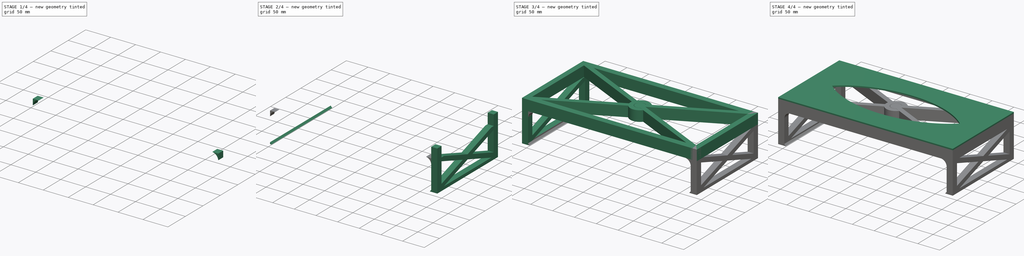
[diagram: build sequence overview — one tinted view per stage of 4, left to right]
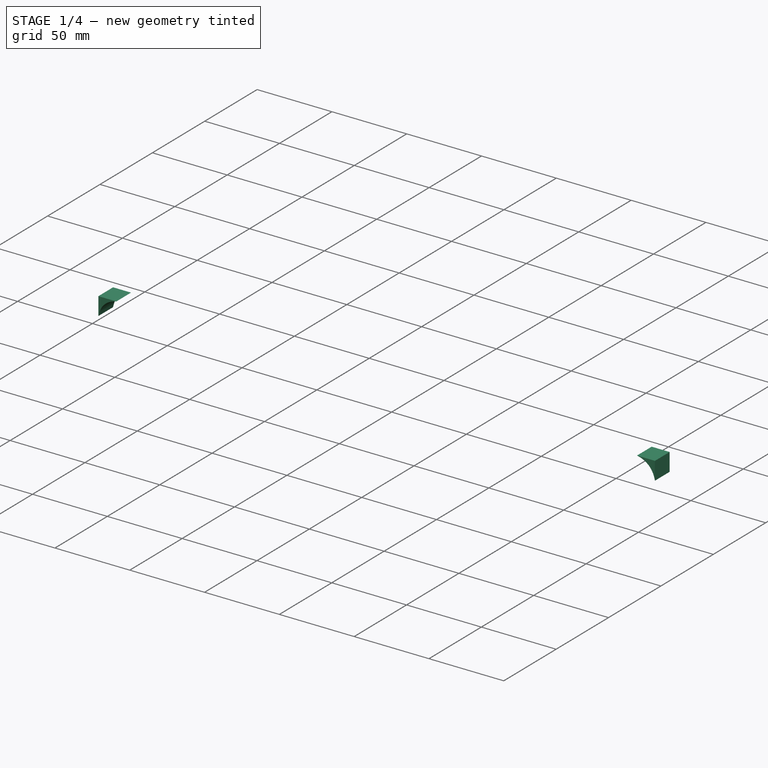
[diagram: stage 1 of 4 — iso view after this stage's code; geometry added in this stage tinted green]
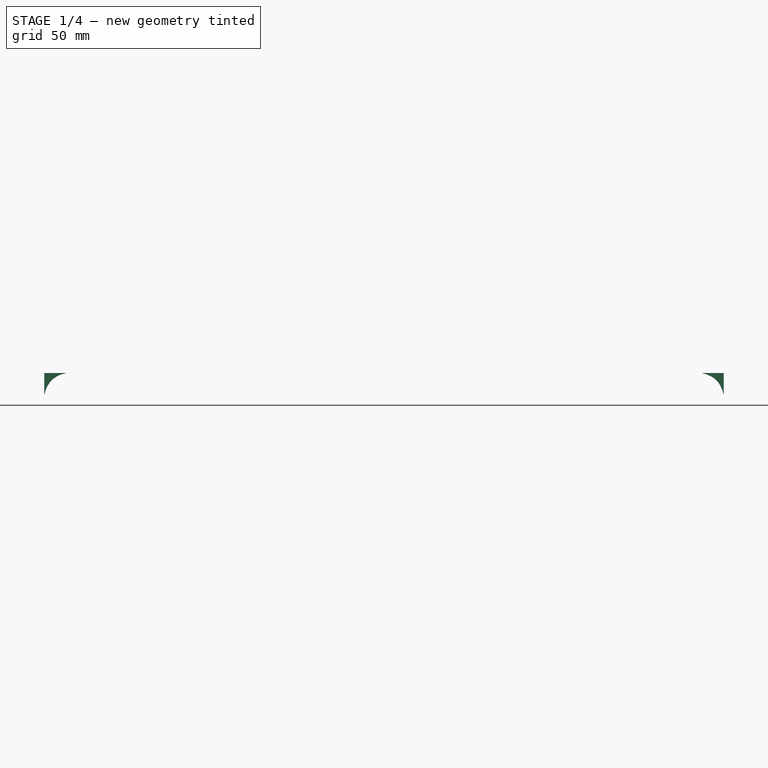
[diagram: stage 1 of 4 — front view after this stage's code; geometry added in this stage tinted green]
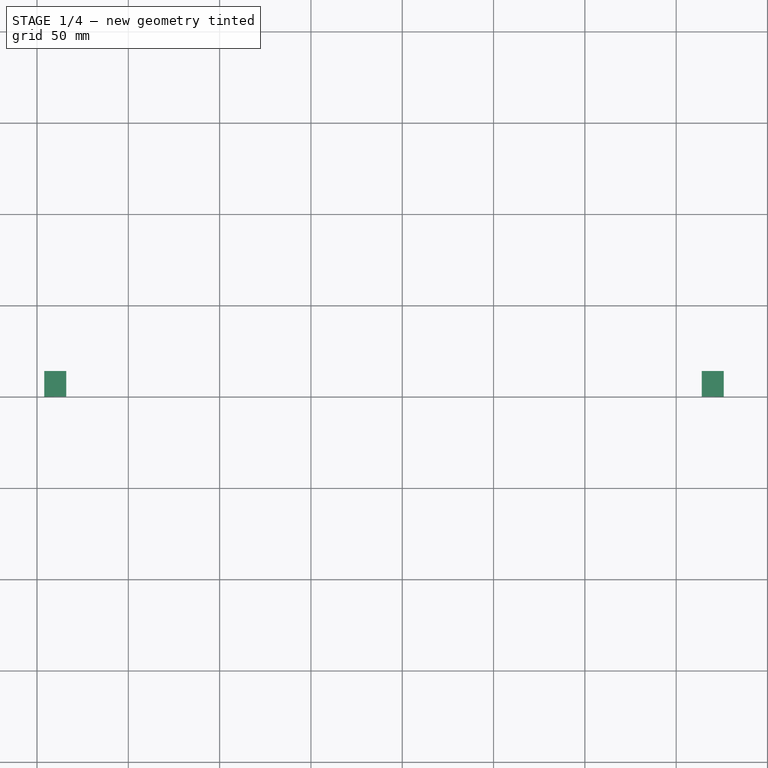
[diagram: stage 1 of 4 — top view after this stage's code; geometry added in this stage tinted green]
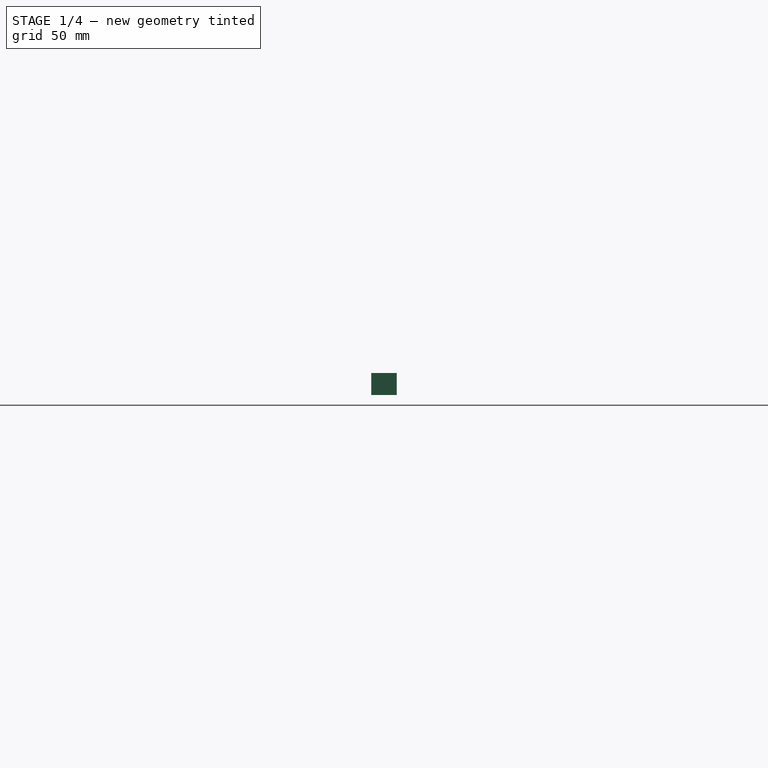
[diagram: stage 1 of 4 — right view after this stage's code; geometry added in this stage tinted green]
FCSTD DOCUMENT  (FreeCAD 0.20R0.20)
Label: 034
License: All rights reserved
LicenseURL: http://en.wikipedia.org/wiki/All_rights_reserved
objects: Sketcher::SketchObject×10, Part::Extrusion×10
note: 20 computed .brp shape members not serialized (recipe doc carries the construction recipe); baked Part::Feature solids carry a one-line shape summary decoded from their .brp

FEATURE [Sketcher::SketchObject] Sketch008  label="sideBrace"
  FullyConstrained = true
  Placement = pos=(0,0,0) rot=(1,0,0;1.5708rad)
  sketch-geometry (10):
    g0: LineSegment StartX=4 StartY=0 StartZ=0 EndX=8 EndY=0 EndZ=0
    g1: LineSegment StartX=4 StartY=0 StartZ=0 EndX=4 EndY=-4 EndZ=0
    g2: LineSegment StartX=8 StartY=0 StartZ=0 EndX=16 EndY=0 EndZ=0
    g3: LineSegment StartX=4 StartY=-4 StartZ=0 EndX=4 EndY=-12 EndZ=0
    g4: Circle CenterX=16 CenterY=0 CenterZ=0 NormalX=0 NormalY=0 NormalZ=1 AngleXU=0 Radius=1
    g5: Circle CenterX=6 CenterY=-2 CenterZ=0 NormalX=0 NormalY=0 NormalZ=1 AngleXU=0 Radius=1
    g6: Circle CenterX=4 CenterY=-12 CenterZ=0 NormalX=0 NormalY=0 NormalZ=1 AngleXU=0 Radius=1
    g7: BSplineCurve PolesCount=3 KnotsCount=2 Degree=2 IsPeriodic=0
    g8: GeomPoint X=16 Y=0 Z=0
    g9: GeomPoint X=4 Y=-12 Z=0
  constraints (24):
    c: PointOnObject(g0,g-1)
    c: Horizontal(g0)
    c: Distance(g0) = 4
    c: Block(g0)
    c: Coincident(g1,g0)
    c: Vertical(g1)
    c: Distance(g1) = 4
    c: Coincident(g2,g0)
    c: Horizontal(g2)
    c: Coincident(g3,g1)
    c: Vertical(g3)
    c: Distance(g2) = 8
    c: Distance(g3) = 8
    c: Weight(g4) = 1
    c: Coincident(g7,g2)
    c: Equal(g4,g5)
    c: Equal(g4,g6)
    c: Coincident(g7,g3)
    c: InternalAlignment(g4,g7)
    c: InternalAlignment(g5,g7)
    c: InternalAlignment(g6,g7)
    c: InternalAlignment(g8,g7)
    c: InternalAlignment(g9,g7)
    c: Block(g7)
FEATURE [Part::Extrusion] Extrude008  label="sideBrace1"
  Base = -> Sketch008
  Dir = (0,-1,2e-16)
  DirMode = 2
  FaceMakerClass = Part::FaceMakerBullseye
  LengthFwd = 14
  LengthRev = 0
  Placement = pos=(0,14,0) rot=(0,0,1;0rad)
  Solid = true
  Symmetric = false
FEATURE [Sketcher::SketchObject] Sketch009  label="sideBrace003"
  FullyConstrained = true
  Placement = pos=(0,0,0) rot=(1,0,0;1.5708rad)
  sketch-geometry (10):
    g0: LineSegment StartX=4 StartY=0 StartZ=0 EndX=8 EndY=0 EndZ=0
    g1: LineSegment StartX=4 StartY=0 StartZ=0 EndX=4 EndY=-4 EndZ=0
    g2: LineSegment StartX=8 StartY=0 StartZ=0 EndX=16 EndY=0 EndZ=0
    g3: LineSegment StartX=4 StartY=-4 StartZ=0 EndX=4 EndY=-12 EndZ=0
    g4: Circle CenterX=16 CenterY=0 CenterZ=0 NormalX=0 NormalY=0 NormalZ=1 AngleXU=0 Radius=1
    g5: Circle CenterX=6 CenterY=-2 CenterZ=0 NormalX=0 NormalY=0 NormalZ=1 AngleXU=0 Radius=1
    g6: Circle CenterX=4 CenterY=-12 CenterZ=0 NormalX=0 NormalY=0 NormalZ=1 AngleXU=0 Radius=1
    g7: BSplineCurve PolesCount=3 KnotsCount=2 Degree=2 IsPeriodic=0
    g8: GeomPoint X=16 Y=0 Z=0
    g9: GeomPoint X=4 Y=-12 Z=0
  constraints (24):
    c: PointOnObject(g0,g-1)
    c: Horizontal(g0)
    c: Distance(g0) = 4
    c: Block(g0)
    c: Coincident(g1,g0)
    c: Vertical(g1)
    c: Distance(g1) = 4
    c: Coincident(g2,g0)
    c: Horizontal(g2)
    c: Coincident(g3,g1)
    c: Vertical(g3)
    c: Distance(g2) = 8
    c: Distance(g3) = 8
    c: Weight(g4) = 1
    c: Coincident(g7,g2)
    c: Equal(g4,g5)
    c: Equal(g4,g6)
    c: Coincident(g7,g3)
    c: InternalAlignment(g4,g7)
    c: InternalAlignment(g5,g7)
    c: InternalAlignment(g6,g7)
    c: InternalAlignment(g8,g7)
    c: InternalAlignment(g9,g7)
    c: Block(g7)
FEATURE [Part::Extrusion] Extrude009  label="sideBrace2"
  Base = -> Sketch009
  Dir = (0,-1,2e-16)
  DirMode = 2
  FaceMakerClass = Part::FaceMakerBullseye
  LengthFwd = 14
  LengthRev = 0
  Placement = pos=(380,0,0) rot=(0,0,1;3.14159rad)
  Solid = true
  Symmetric = false
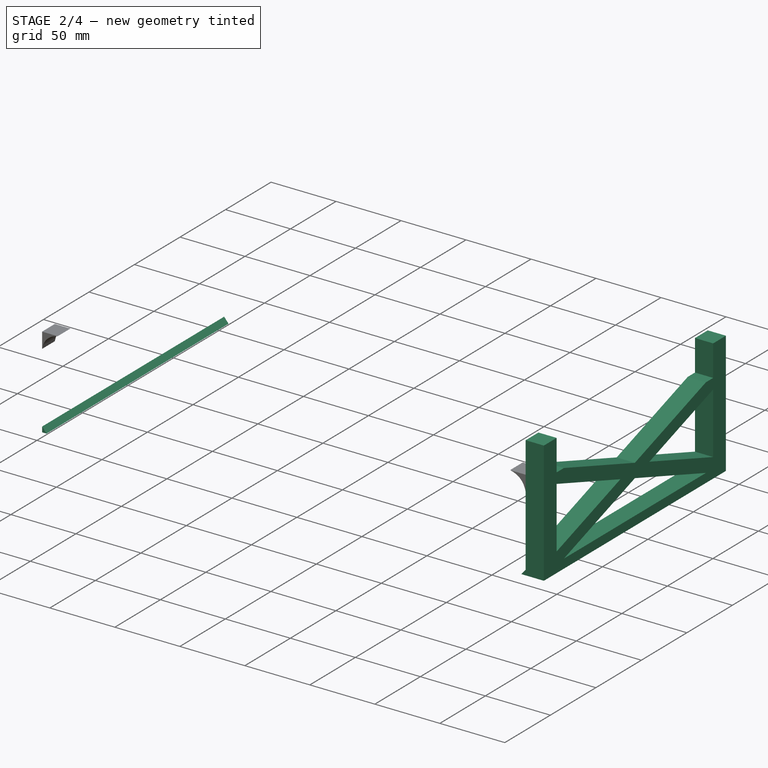
[diagram: stage 2 of 4 — iso view after this stage's code; geometry added in this stage tinted green]
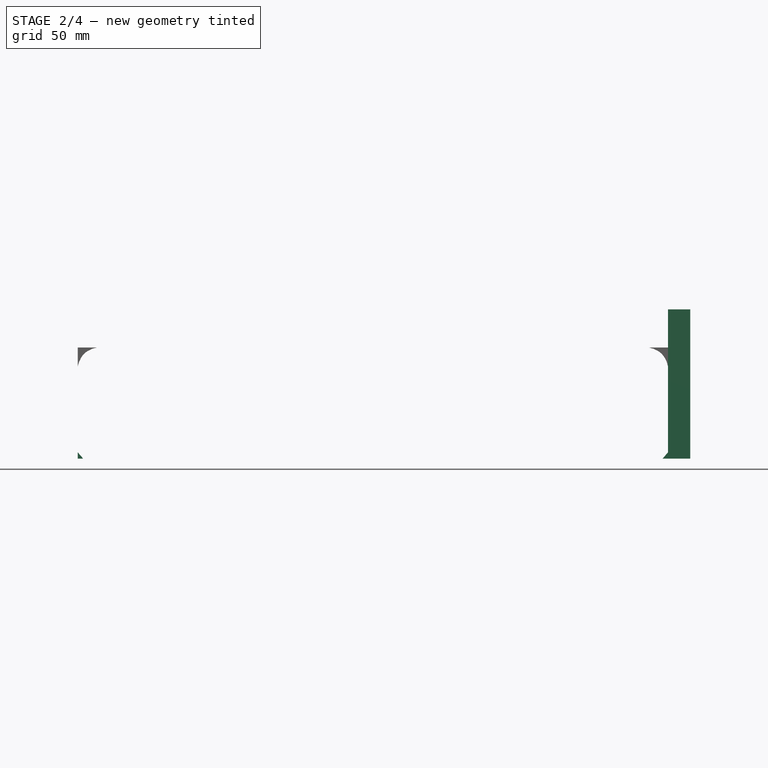
[diagram: stage 2 of 4 — front view after this stage's code; geometry added in this stage tinted green]
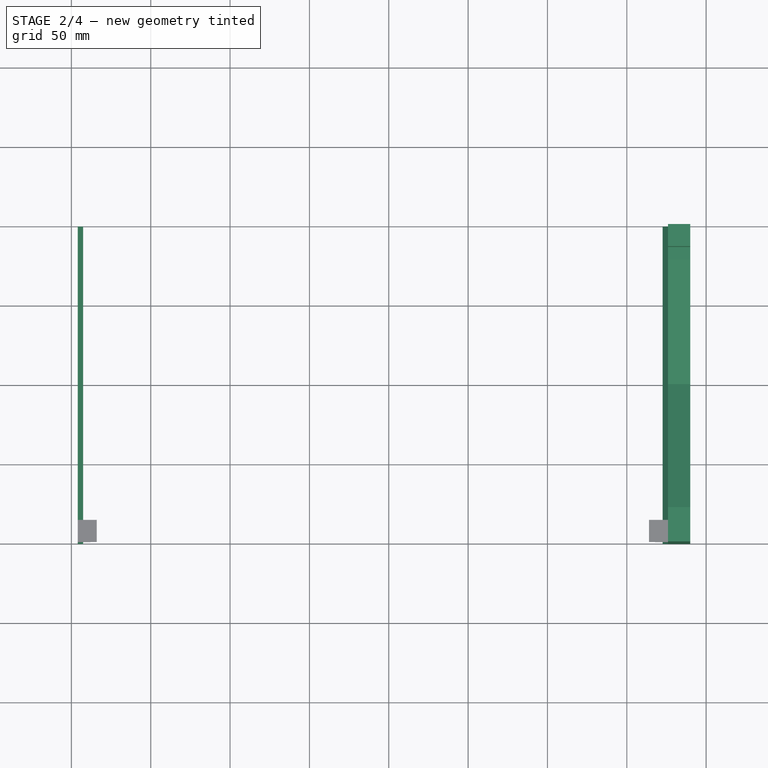
[diagram: stage 2 of 4 — top view after this stage's code; geometry added in this stage tinted green]
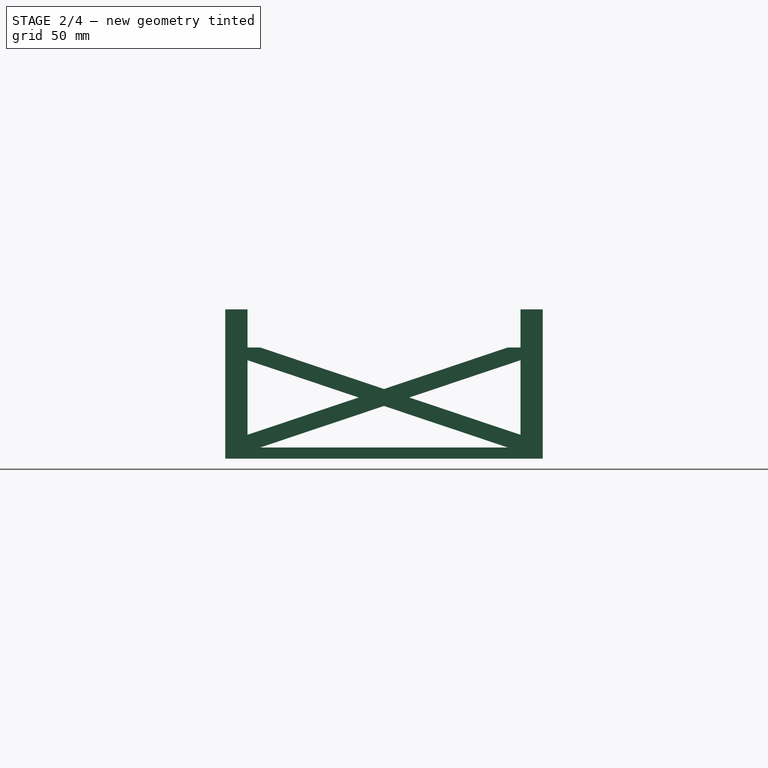
[diagram: stage 2 of 4 — right view after this stage's code; geometry added in this stage tinted green]
FEATURE [Sketcher::SketchObject] Sketch005  label="side003"
  FullyConstrained = true
  Placement = pos=(0,0,0) rot=(0.57735,0.57735,0.57735;2.0944rad)
  sketch-geometry (22):
    g0: LineSegment StartX=0 StartY=0 StartZ=0 EndX=0 EndY=-70 EndZ=0
    g1: LineSegment StartX=0 StartY=-70 StartZ=0 EndX=200 EndY=-70 EndZ=0
    g2: LineSegment StartX=200 StartY=-70 StartZ=0 EndX=200 EndY=0 EndZ=0
    g3: LineSegment StartX=0 StartY=0 StartZ=0 EndX=0 EndY=24 EndZ=0
    g4: LineSegment StartX=200 StartY=0 StartZ=0 EndX=200 EndY=24 EndZ=0
    g5: LineSegment StartX=0 StartY=24 StartZ=0 EndX=14 EndY=24 EndZ=0
    g6: LineSegment StartX=200 StartY=24 StartZ=0 EndX=186 EndY=24 EndZ=0
    g7: LineSegment StartX=14 StartY=0 StartZ=0 EndX=22 EndY=0 EndZ=0
    g8: LineSegment StartX=186 StartY=0 StartZ=0 EndX=178 EndY=0 EndZ=0
    g9: LineSegment StartX=22 StartY=0 StartZ=0 EndX=100 EndY=-26.1585 EndZ=0
    g10: LineSegment StartX=178 StartY=-63 StartZ=0 EndX=100 EndY=-36.8415 EndZ=0
    g11: LineSegment StartX=22 StartY=-63 StartZ=0 EndX=100 EndY=-36.8415 EndZ=0
    g12: LineSegment StartX=178 StartY=0 StartZ=0 EndX=100 EndY=-26.1585 EndZ=0
    g13: LineSegment StartX=14 StartY=-8 StartZ=0 EndX=14 EndY=-55 EndZ=0
    g14: LineSegment StartX=186 StartY=-55 StartZ=0 EndX=186 EndY=-8 EndZ=0
    g15: LineSegment StartX=178 StartY=-63 StartZ=0 EndX=22 EndY=-63 EndZ=0
    g16: LineSegment StartX=14 StartY=0 StartZ=0 EndX=14 EndY=24 EndZ=0
    g17: LineSegment StartX=186 StartY=0 StartZ=0 EndX=186 EndY=24 EndZ=0
    g18: LineSegment StartX=115.927 StartY=-31.5 StartZ=0 EndX=186 EndY=-55 EndZ=0
    g19: LineSegment StartX=84.0727 StartY=-31.5 StartZ=0 EndX=14 EndY=-8 EndZ=0
    g20: LineSegment StartX=115.927 StartY=-31.5 StartZ=0 EndX=186 EndY=-8 EndZ=0
    g21: LineSegment StartX=84.0727 StartY=-31.5 StartZ=0 EndX=14 EndY=-55 EndZ=0
  constraints (50):
    c: Coincident(g0,g-1)
    c: Vertical(g0)
    c: Distance(g0) = 70
    c: Coincident(g1,g0)
    c: Horizontal(g1)
    c: Distance(g1) = 200
    c: Coincident(g2,g1)
    c: Vertical(g2)
    c: Distance(g2) = 70
    c: Coincident(g3,g0)
    c: Vertical(g3)
    c: Coincident(g4,g2)
    c: Vertical(g4)
    c: Distance(g4) = 24
    c: Distance(g3) = 24
    c: Coincident(g5,g3)
    c: Horizontal(g5)
    c: Coincident(g6,g4)
    c: Horizontal(g6)
    c: Distance(g6) = 14
    c: Distance(g5) = 14
    c: Horizontal(g7)
    c: Horizontal(g8)
    c: Distance(g7) = 8
    c: Distance(g8) = 8
    c: Coincident(g9,g7)
    c: Coincident(g12,g8)
    c: Vertical(g13)
    c: Vertical(g14)
    c: Block(g13)
    c: Block(g14)
    c: Block(g11)
    c: Block(g10)
    c: Coincident(g16,g5)
    c: Vertical(g16)
    c: Coincident(g17,g6)
    c: Vertical(g17)
    c: Coincident(g11,g10)
    c: Coincident(g20,g18)
    c: Coincident(g12,g9)
    c: Coincident(g21,g19)
    c: Block(g12)
    c: Block(g19)
    c: Block(g20)
    c: Block(g17)
    c: Block(g7)
    c: Block(g16)
    c: Block(g15)
    c: Block(g18)
    c: Block(g21)
FEATURE [Part::Extrusion] Extrude005  label="side2"
  Base = -> Sketch005
  Dir = (1,0,0)
  DirMode = 2
  FaceMakerClass = Part::FaceMakerBullseye
  LengthFwd = 14
  LengthRev = 0
  Placement = pos=(376,0,0) rot=(0,0,1;0rad)
  Solid = true
  Symmetric = false
FEATURE [Sketcher::SketchObject] Sketch006  label="sideFoot"
  FullyConstrained = true
  Placement = pos=(0,0,0) rot=(1,0,0;1.5708rad)
  sketch-geometry (3):
    g0: LineSegment StartX=4 StartY=-70 StartZ=0 EndX=7.4 EndY=-70 EndZ=0
    g1: LineSegment StartX=4 StartY=-70 StartZ=0 EndX=4 EndY=-66 EndZ=0
    g2: LineSegment StartX=4 StartY=-66 StartZ=0 EndX=7.4 EndY=-70 EndZ=0
  constraints (8):
    c: Horizontal(g0)
    c: Distance(g0) = 3.4
    c: Coincident(g1,g0)
    c: Vertical(g1)
    c: Distance(g1) = 4
    c: Coincident(g2,g1)
    c: Coincident(g2,g0)
    c: Block(g0)
FEATURE [Part::Extrusion] Extrude006  label="sideFoot1"
  Base = -> Sketch006
  Dir = (0,-1,-3e-16)
  DirMode = 2
  FaceMakerClass = Part::FaceMakerBullseye
  LengthFwd = 200
  LengthRev = 0
  Placement = pos=(0,200,0) rot=(0,0,1;0rad)
  Solid = true
  Symmetric = false
FEATURE [Sketcher::SketchObject] Sketch007  label="sideFoot003"
  FullyConstrained = true
  Placement = pos=(0,0,0) rot=(1,0,0;1.5708rad)
  sketch-geometry (3):
    g0: LineSegment StartX=4 StartY=-70 StartZ=0 EndX=7.4 EndY=-70 EndZ=0
    g1: LineSegment StartX=4 StartY=-70 StartZ=0 EndX=4 EndY=-66 EndZ=0
    g2: LineSegment StartX=4 StartY=-66 StartZ=0 EndX=7.4 EndY=-70 EndZ=0
  constraints (8):
    c: Horizontal(g0)
    c: Distance(g0) = 3.4
    c: Coincident(g1,g0)
    c: Vertical(g1)
    c: Distance(g1) = 4
    c: Coincident(g2,g1)
    c: Coincident(g2,g0)
    c: Block(g0)
FEATURE [Part::Extrusion] Extrude007  label="sideFoot2"
  Base = -> Sketch007
  Dir = (0,-1,-3e-16)
  DirMode = 2
  FaceMakerClass = Part::FaceMakerBullseye
  LengthFwd = 200
  LengthRev = 0
  Placement = pos=(380,0,0) rot=(0,0,1;3.14159rad)
  Solid = true
  Symmetric = false
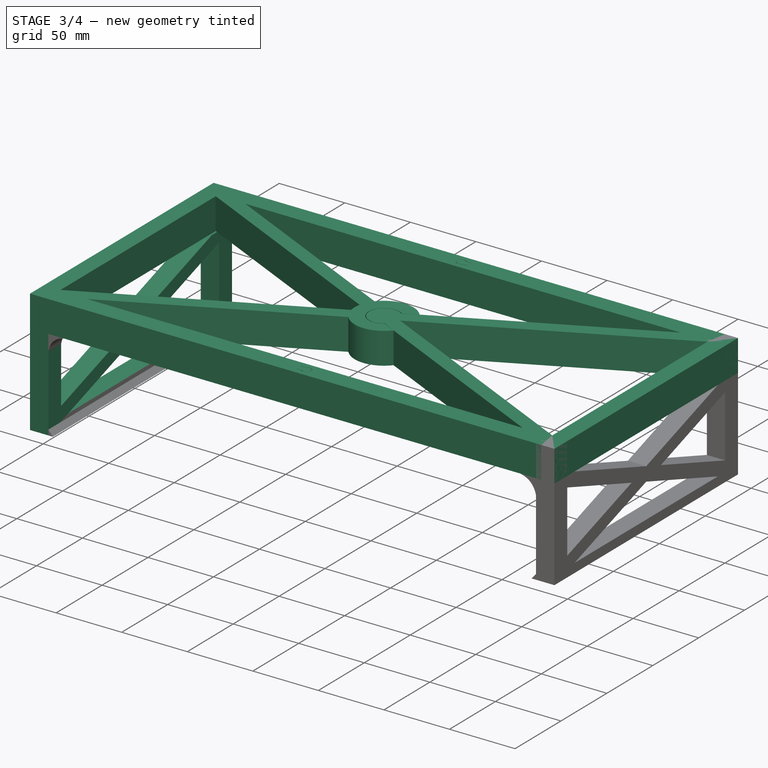
[diagram: stage 3 of 4 — iso view after this stage's code; geometry added in this stage tinted green]
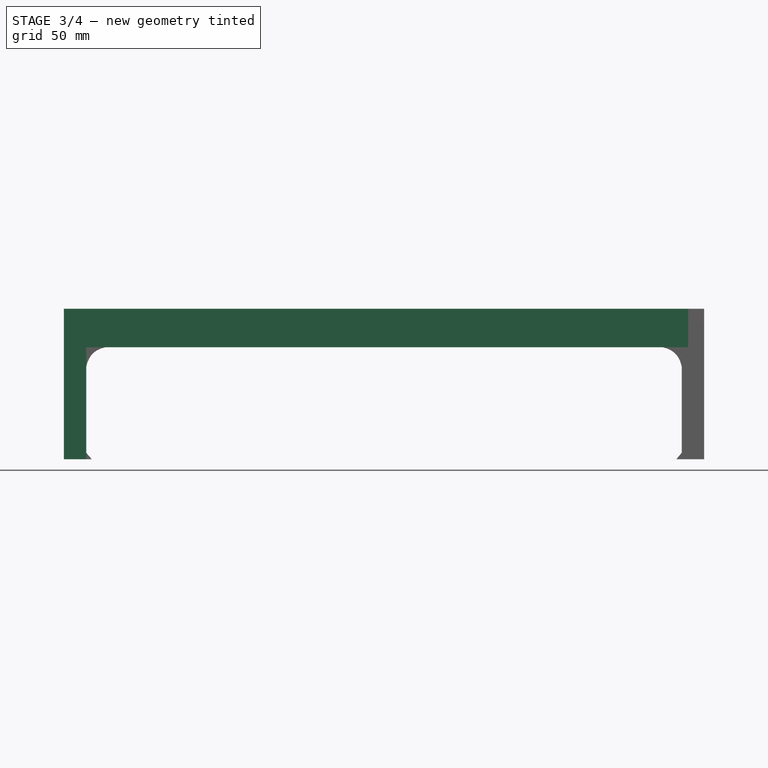
[diagram: stage 3 of 4 — front view after this stage's code; geometry added in this stage tinted green]
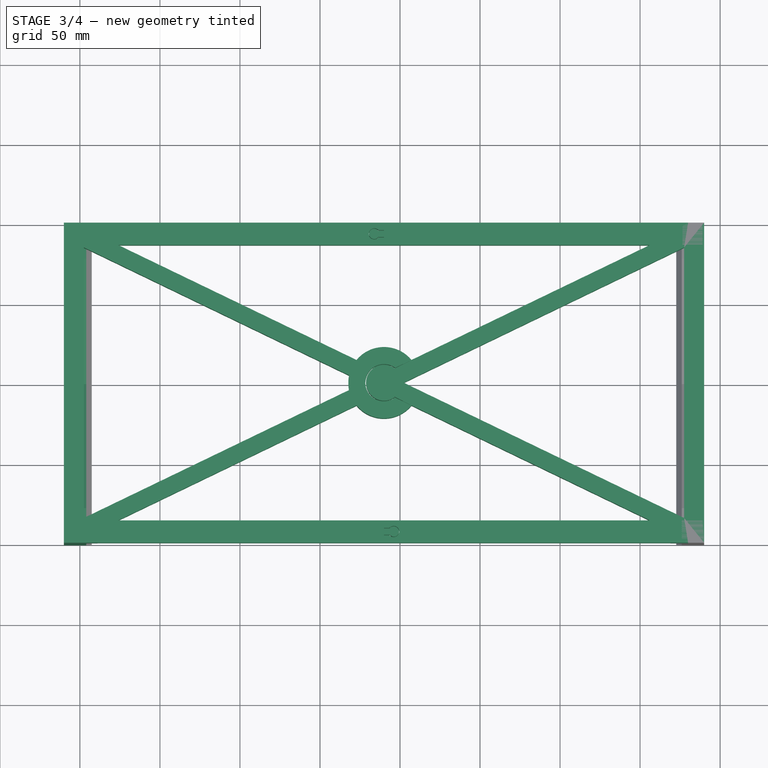
[diagram: stage 3 of 4 — top view after this stage's code; geometry added in this stage tinted green]
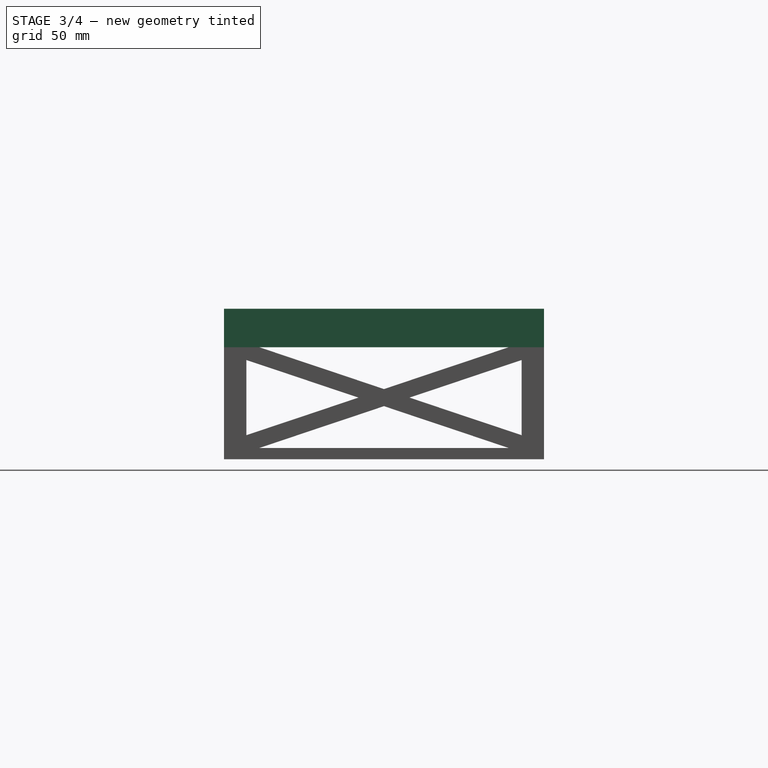
[diagram: stage 3 of 4 — right view after this stage's code; geometry added in this stage tinted green]
FEATURE [Part::Extrusion] Extrude002  label="baseL001"
  Base = -> Sketch001
  Dir = (0,0,1)
  DirMode = 2
  FaceMakerClass = Part::FaceMakerBullseye
  LengthFwd = 24
  LengthRev = 0
  Solid = true
  Symmetric = false
FEATURE [Part::Extrusion] Extrude003  label="baseR001"
  Base = -> Sketch002
  Dir = (0,0,1)
  DirMode = 2
  FaceMakerClass = Part::FaceMakerBullseye
  LengthFwd = 24
  LengthRev = 0
  Placement = pos=(-10,0,0) rot=(0,0,1;0rad)
  Solid = true
  Symmetric = false
FEATURE [Sketcher::SketchObject] Sketch  label="side"
  FullyConstrained = true
  Placement = pos=(0,0,0) rot=(0.57735,0.57735,0.57735;2.0944rad)
  sketch-geometry (22):
    g0: LineSegment StartX=0 StartY=0 StartZ=0 EndX=0 EndY=-70 EndZ=0
    g1: LineSegment StartX=0 StartY=-70 StartZ=0 EndX=200 EndY=-70 EndZ=0
    g2: LineSegment StartX=200 StartY=-70 StartZ=0 EndX=200 EndY=0 EndZ=0
    g3: LineSegment StartX=0 StartY=0 StartZ=0 EndX=0 EndY=24 EndZ=0
    g4: LineSegment StartX=200 StartY=0 StartZ=0 EndX=200 EndY=24 EndZ=0
    g5: LineSegment StartX=0 StartY=24 StartZ=0 EndX=14 EndY=24 EndZ=0
    g6: LineSegment StartX=200 StartY=24 StartZ=0 EndX=186 EndY=24 EndZ=0
    g7: LineSegment StartX=14 StartY=0 StartZ=0 EndX=22 EndY=0 EndZ=0
    g8: LineSegment StartX=186 StartY=0 StartZ=0 EndX=178 EndY=0 EndZ=0
    g9: LineSegment StartX=22 StartY=0 StartZ=0 EndX=100 EndY=-26.1585 EndZ=0
    g10: LineSegment StartX=178 StartY=-63 StartZ=0 EndX=100 EndY=-36.8415 EndZ=0
    g11: LineSegment StartX=22 StartY=-63 StartZ=0 EndX=100 EndY=-36.8415 EndZ=0
    g12: LineSegment StartX=178 StartY=0 StartZ=0 EndX=100 EndY=-26.1585 EndZ=0
    g13: LineSegment StartX=14 StartY=-8 StartZ=0 EndX=14 EndY=-55 EndZ=0
    g14: LineSegment StartX=186 StartY=-55 StartZ=0 EndX=186 EndY=-8 EndZ=0
    g15: LineSegment StartX=178 StartY=-63 StartZ=0 EndX=22 EndY=-63 EndZ=0
    g16: LineSegment StartX=14 StartY=0 StartZ=0 EndX=14 EndY=24 EndZ=0
    g17: LineSegment StartX=186 StartY=0 StartZ=0 EndX=186 EndY=24 EndZ=0
    g18: LineSegment StartX=115.927 StartY=-31.5 StartZ=0 EndX=186 EndY=-55 EndZ=0
    g19: LineSegment StartX=84.0727 StartY=-31.5 StartZ=0 EndX=14 EndY=-8 EndZ=0
    g20: LineSegment StartX=115.927 StartY=-31.5 StartZ=0 EndX=186 EndY=-8 EndZ=0
    g21: LineSegment StartX=84.0727 StartY=-31.5 StartZ=0 EndX=14 EndY=-55 EndZ=0
  constraints (50):
    c: Coincident(g0,g-1)
    c: Vertical(g0)
    c: Distance(g0) = 70
    c: Coincident(g1,g0)
    c: Horizontal(g1)
    c: Distance(g1) = 200
    c: Coincident(g2,g1)
    c: Vertical(g2)
    c: Distance(g2) = 70
    c: Coincident(g3,g0)
    c: Vertical(g3)
    c: Coincident(g4,g2)
    c: Vertical(g4)
    c: Distance(g4) = 24
    c: Distance(g3) = 24
    c: Coincident(g5,g3)
    c: Horizontal(g5)
    c: Coincident(g6,g4)
    c: Horizontal(g6)
    c: Distance(g6) = 14
    c: Distance(g5) = 14
    c: Horizontal(g7)
    c: Horizontal(g8)
    c: Distance(g7) = 8
    c: Distance(g8) = 8
    c: Coincident(g9,g7)
    c: Coincident(g12,g8)
    c: Vertical(g13)
    c: Vertical(g14)
    c: Block(g13)
    c: Block(g14)
    c: Block(g11)
    c: Block(g10)
    c: Coincident(g16,g5)
    c: Vertical(g16)
    c: Coincident(g17,g6)
    c: Vertical(g17)
    c: Coincident(g11,g10)
    c: Coincident(g20,g18)
    c: Coincident(g12,g9)
    c: Coincident(g21,g19)
    c: Block(g12)
    c: Block(g19)
    c: Block(g20)
    c: Block(g17)
    c: Block(g7)
    c: Block(g16)
    c: Block(g15)
    c: Block(g18)
    c: Block(g21)
FEATURE [Part::Extrusion] Extrude004  label="side1"
  Base = -> Sketch
  Dir = (1,0,0)
  DirMode = 2
  FaceMakerClass = Part::FaceMakerBullseye
  LengthFwd = 14
  LengthRev = 0
  Placement = pos=(-10,0,0) rot=(0,0,1;0rad)
  Solid = true
  Symmetric = false
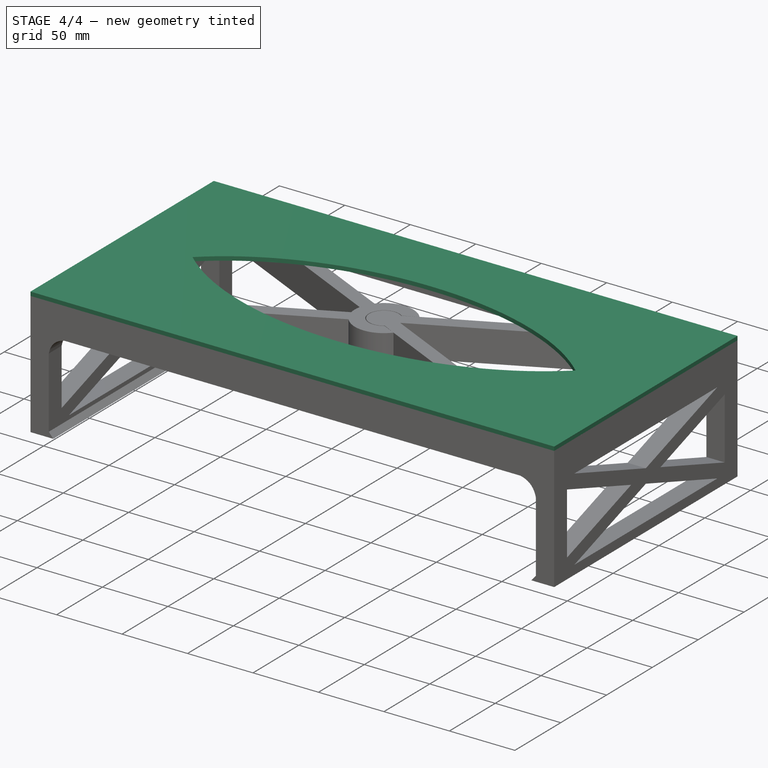
[diagram: stage 4 of 4 — iso view after this stage's code; geometry added in this stage tinted green]
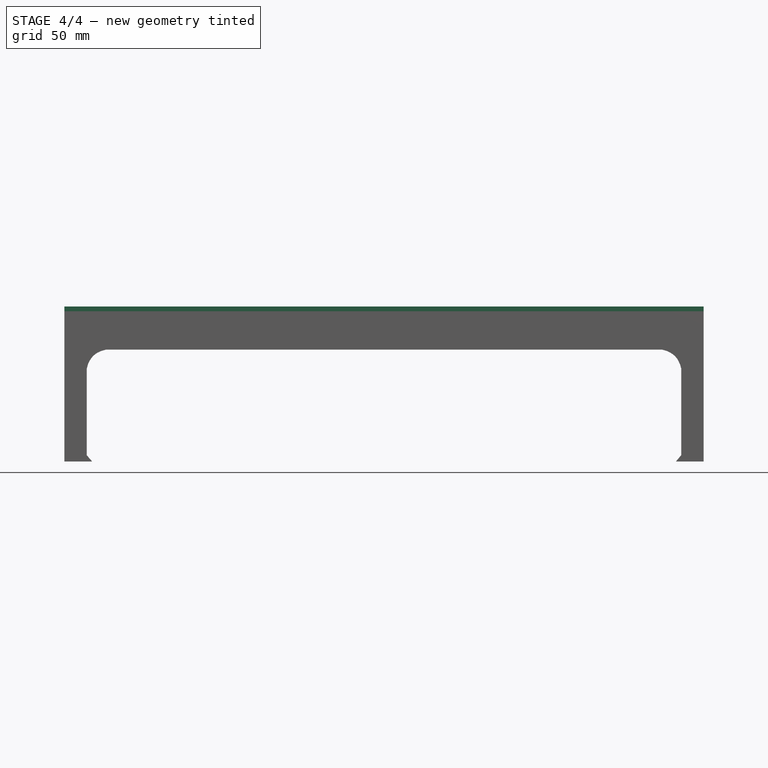
[diagram: stage 4 of 4 — front view after this stage's code; geometry added in this stage tinted green]
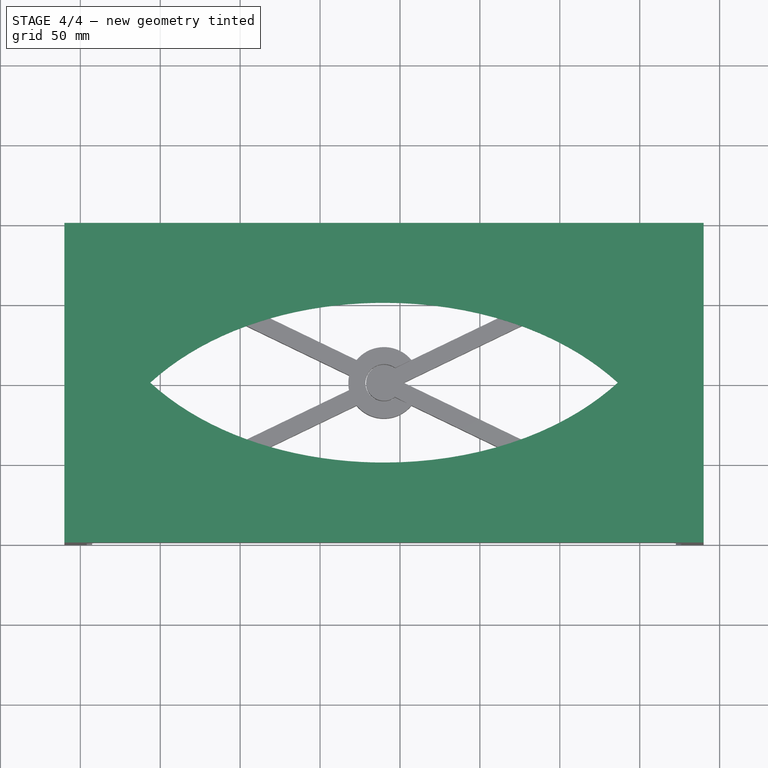
[diagram: stage 4 of 4 — top view after this stage's code; geometry added in this stage tinted green]
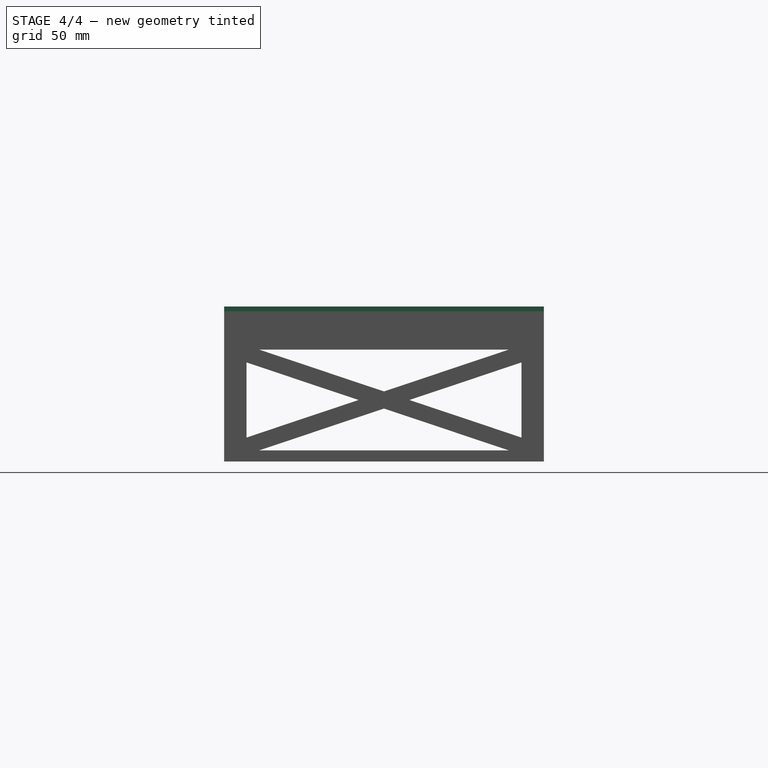
[diagram: stage 4 of 4 — right view after this stage's code; geometry added in this stage tinted green]
FEATURE [Sketcher::SketchObject] Sketch001  label="baseL"
  FullyConstrained = true
  sketch-geometry (30):
    g0: LineSegment StartX=0 StartY=200 StartZ=0 EndX=190 EndY=200 EndZ=0
    g1: LineSegment StartX=0 StartY=0 StartZ=0 EndX=190 EndY=0 EndZ=0
    g2: LineSegment StartX=24 StartY=186 StartZ=0 EndX=172.826 EndY=114.213 EndZ=0
    g3: LineSegment StartX=16 StartY=178 StartZ=0 EndX=168.186 EndY=104.593 EndZ=0
    g4: LineSegment StartX=16 StartY=22 StartZ=0 EndX=168.186 EndY=95.4072 EndZ=0
    g5: LineSegment StartX=24 StartY=14 StartZ=0 EndX=172.826 EndY=85.7867 EndZ=0
    g6: LineSegment StartX=24 StartY=14 StartZ=0 EndX=190 EndY=14 EndZ=0
    g7: LineSegment StartX=190 StartY=186 StartZ=0 EndX=24 EndY=186 EndZ=0
    g8: ArcOfCircle CenterX=190 CenterY=100 CenterZ=0 NormalX=0 NormalY=0 NormalZ=1 AngleXU=0 Radius=22.2927 StartAngle=0.69135 EndAngle=2.45024
    g9: ArcOfCircle CenterX=190 CenterY=100 CenterZ=0 NormalX=0 NormalY=0 NormalZ=1 AngleXU=0 Radius=11.6257 StartAngle=0.926723 EndAngle=5.35646
    g10: LineSegment StartX=190 StartY=200 StartZ=0 EndX=190 EndY=195.3 EndZ=0
    g11: LineSegment StartX=190 StartY=195.3 StartZ=0 EndX=186.638 EndY=195.3 EndZ=0
    g12: ArcOfCircle CenterX=184 CenterY=193 CenterZ=0 NormalX=0 NormalY=0 NormalZ=1 AngleXU=0 Radius=3.5 StartAngle=0.717022 EndAngle=5.56616
    g13: LineSegment StartX=190 StartY=186 StartZ=0 EndX=190 EndY=190.7 EndZ=0
    g14: LineSegment StartX=190 StartY=190.7 StartZ=0 EndX=186.638 EndY=190.7 EndZ=0
    g15: LineSegment StartX=190 StartY=14 StartZ=0 EndX=190 EndY=9 EndZ=0
    g16: LineSegment StartX=190 StartY=9 StartZ=0 EndX=193.652 EndY=9 EndZ=0
    g17: LineSegment StartX=190 StartY=0 StartZ=0 EndX=190 EndY=5 EndZ=0
    g18: ArcOfCircle CenterX=196.15 CenterY=7 CenterZ=0 NormalX=0 NormalY=0 NormalZ=1 AngleXU=0 Radius=3.2 StartAngle=3.81672 EndAngle=8.74965
    g19: LineSegment StartX=190 StartY=5 StartZ=0 EndX=193.652 EndY=5 EndZ=0
    g20: ArcOfCircle CenterX=190 CenterY=100 CenterZ=0 NormalX=0 NormalY=0 NormalZ=1 AngleXU=0 Radius=22.2927 StartAngle=3.83294 EndAngle=5.59183
    g21: ArcOfCircle CenterX=190 CenterY=100 CenterZ=0 NormalX=0 NormalY=0 NormalZ=1 AngleXU=0 Radius=22.2927 StartAngle=2.93408 EndAngle=3.3491
    g22: LineSegment StartX=196.981 StartY=90.7034 StartZ=0 EndX=207.174 EndY=85.7867 EndZ=0
    g23: LineSegment StartX=196.981 StartY=109.297 StartZ=0 EndX=207.174 EndY=114.213 EndZ=0
    g24: LineSegment StartX=0 StartY=200 StartZ=0 EndX=-10 EndY=200 EndZ=0
    g25: LineSegment StartX=-10 StartY=200 StartZ=0 EndX=-10 EndY=0 EndZ=0
    g26: LineSegment StartX=0 StartY=0 StartZ=0 EndX=-10 EndY=0 EndZ=0
    g27: LineSegment StartX=16 StartY=22 StartZ=0 EndX=2.48958 EndY=15.4832 EndZ=0
    g28: LineSegment StartX=16 StartY=178 StartZ=0 EndX=2.48958 EndY=184.517 EndZ=0
    g29: LineSegment StartX=2.48958 StartY=184.517 StartZ=0 EndX=2.48958 EndY=15.4832 EndZ=0
  constraints (75):
    c: Horizontal(g0)
    c: Distance(g0) = 190
    c: Horizontal(g1)
    c: Distance(g1) = 190
    c: Block(g2)
    c: Block(g3)
    c: Block(g5)
    c: Block(g4)
    c: Coincident(g6,g5)
    c: Horizontal(g6)
    c: Coincident(g7,g2)
    c: Horizontal(g7)
    c: Block(g7)
    c: Coincident(g10,g0)
    c: Vertical(g10)
    c: Distance(g10) = 4.7
    c: Coincident(g11,g10)
    c: Horizontal(g11)
    c: Coincident(g13,g7)
    c: Vertical(g13)
    c: Distance(g13) = 4.7
    c: Coincident(g14,g13)
    c: Block(g14)
    c: Block(g6)
    c: Coincident(g15,g6)
    c: Vertical(g15)
    c: Distance(g15) = 5
    c: Coincident(g16,g15)
    c: Horizontal(g16)
    c: Coincident(g17,g1)
    c: Vertical(g17)
    c: Distance(g17) = 5
    c: Coincident(g19,g17)
    c: Horizontal(g19)
    c: Block(g19)
    c: Block(g18)
    c: Coincident(g18,g16)
    c: Coincident(g18,g19)
    c: Block(g16)
    c: Block(g15)
    c: Block(g12)
    c: Coincident(g12,g14)
    c: Coincident(g12,g11)
    c: Block(g11)
    c: Block(g9)
    c: Block(g8)
    c: Equal(g8,g20)
    c: Coincident(g21,g4)
    c: Coincident(g20,g5)
    c: Coincident(g8,g20)
    c: Coincident(g8,g2)
    c: Coincident(g21,g3)
    c: Coincident(g8,g21)
    c: Coincident(g23,g8)
    c: Coincident(g22,g20)
    c: Coincident(g22,g9)
    c: Coincident(g23,g9)
    c: Block(g20)
    c: Horizontal(g24)
    c: Distance(g24) = 10
    c: Coincident(g25,g24)
    c: Vertical(g25)
    c: Horizontal(g26)
    c: Coincident(g25,g26)
    c: Block(g25)
    c: Block(g26)
    c: Coincident(g27,g4)
    c: Parallel(g4,g27)
    c: Distance(g27) = 15
    c: Coincident(g28,g3)
    c: Parallel(g3,g28)
    c: Distance(g28) = 15
    c: Coincident(g29,g28)
    c: Coincident(g29,g27)
    c: Vertical(g29)
FEATURE [Sketcher::SketchObject] Sketch002  label="baseR"
  FullyConstrained = true
  sketch-geometry (29):
    g0: LineSegment StartX=390 StartY=200 StartZ=0 EndX=200 EndY=200 EndZ=0
    g1: LineSegment StartX=390 StartY=0 StartZ=0 EndX=200 EndY=0 EndZ=0
    g2: LineSegment StartX=212.293 StartY=100 StartZ=0 EndX=374 EndY=22 EndZ=0
    g3: LineSegment StartX=217.615 StartY=85.5738 StartZ=0 EndX=366 EndY=14 EndZ=0
    g4: LineSegment StartX=374 StartY=178 StartZ=0 EndX=212.293 EndY=100 EndZ=0
    g5: LineSegment StartX=217.615 StartY=114.426 StartZ=0 EndX=366 EndY=186 EndZ=0
    g6: LineSegment StartX=366 StartY=14 StartZ=0 EndX=200 EndY=14 EndZ=0
    g7: LineSegment StartX=200 StartY=186 StartZ=0 EndX=366 EndY=186 EndZ=0
    g8: ArcOfCircle CenterX=200 CenterY=100 CenterZ=0 NormalX=0 NormalY=0 NormalZ=1 AngleXU=0 Radius=11.2273 StartAngle=0.945168 EndAngle=5.33802
    g9: LineSegment StartX=200 StartY=200 StartZ=0 EndX=200 EndY=195 EndZ=0
    g10: LineSegment StartX=200 StartY=186 StartZ=0 EndX=200 EndY=191 EndZ=0
    g11: LineSegment StartX=200 StartY=191 StartZ=0 EndX=196.348 EndY=191 EndZ=0
    g12: ArcOfCircle CenterX=193.85 CenterY=193 CenterZ=0 NormalX=0 NormalY=0 NormalZ=1 AngleXU=0 Radius=3.2 StartAngle=0.675132 EndAngle=5.60805
    g13: LineSegment StartX=200 StartY=195 StartZ=0 EndX=196.348 EndY=195 EndZ=0
    g14: LineSegment StartX=200 StartY=14 StartZ=0 EndX=200 EndY=9.3 EndZ=0
    g15: LineSegment StartX=200 StartY=9.3 StartZ=0 EndX=203.362 EndY=9.3 EndZ=0
    g16: ArcOfCircle CenterX=206 CenterY=7 CenterZ=0 NormalX=0 NormalY=0 NormalZ=1 AngleXU=0 Radius=3.5 StartAngle=3.85861 EndAngle=8.70776
    g17: LineSegment StartX=200 StartY=0 StartZ=0 EndX=200 EndY=4.7 EndZ=0
    g18: LineSegment StartX=200 StartY=4.7 StartZ=0 EndX=203.362 EndY=4.7 EndZ=0
    g19: LineSegment StartX=206.575 StartY=109.101 StartZ=0 EndX=206.575 EndY=108.801 EndZ=0
    g20: LineSegment StartX=206.575 StartY=90.8992 StartZ=0 EndX=206.575 EndY=91.1992 EndZ=0
    g21: LineSegment StartX=206.575 StartY=108.801 StartZ=0 EndX=217.615 EndY=114.426 EndZ=0
    g22: LineSegment StartX=206.575 StartY=91.1992 StartZ=0 EndX=217.615 EndY=85.5738 EndZ=0
    g23: LineSegment StartX=390 StartY=200 StartZ=0 EndX=400 EndY=200 EndZ=0
    g24: LineSegment StartX=400 StartY=200 StartZ=0 EndX=400 EndY=0 EndZ=0
    g25: LineSegment StartX=390 StartY=0 StartZ=0 EndX=400 EndY=0 EndZ=0
    g26: LineSegment StartX=374 StartY=22 StartZ=0 EndX=387.51 EndY=15.4832 EndZ=0
    g27: LineSegment StartX=374 StartY=178 StartZ=0 EndX=387.51 EndY=184.517 EndZ=0
    g28: LineSegment StartX=387.51 StartY=184.517 StartZ=0 EndX=387.51 EndY=15.4832 EndZ=0
  constraints (71):
    c: Horizontal(g0)
    c: Horizontal(g1)
    c: Distance(g1) = 190
    c: Distance(g0) = 190
    c: Block(g5)
    c: Block(g4)
    c: Block(g2)
    c: Block(g3)
    c: Coincident(g2,g4)
    c: Coincident(g6,g3)
    c: Coincident(g7,g5)
    c: Coincident(g9,g0)
    c: Vertical(g9)
    c: Block(g7)
    c: Coincident(g10,g7)
    c: Vertical(g10)
    c: Distance(g10) = 5
    c: Coincident(g11,g10)
    c: Horizontal(g11)
    c: Coincident(g13,g9)
    c: Block(g13)
    c: Block(g6)
    c: Coincident(g14,g6)
    c: Vertical(g14)
    c: Distance(g14) = 4.7
    c: Coincident(g15,g14)
    c: Horizontal(g15)
    c: Coincident(g17,g1)
    c: Vertical(g17)
    c: Coincident(g18,g17)
    c: Block(g18)
    c: Block(g16)
    c: Coincident(g16,g15)
    c: Coincident(g16,g18)
    c: Block(g12)
    c: Coincident(g12,g11)
    c: Coincident(g12,g13)
    c: Block(g8)
    c: Coincident(g19,g8)
    c: Vertical(g19)
    c: Coincident(g20,g8)
    c: Vertical(g20)
    c: Distance(g19) = 0.3
    c: Distance(g20) = 0.3
    c: Coincident(g21,g19)
    c: Angle(g21,g19) = 1.09956
    c: Coincident(g22,g20)
    c: Angle(g20,g22) = 1.09956
    c: Block(g22)
    c: Block(g21)
    c: Coincident(g3,g22)
    c: Coincident(g5,g21)
    c: Horizontal(g23)
    c: Distance(g23) = 10
    c: Coincident(g24,g23)
    c: Vertical(g24)
    c: Horizontal(g25)
    c: Coincident(g25,g24)
    c: Coincident(g26,g2)
    c: Coincident(g27,g4)
    c: Parallel(g4,g27)
    c: Parallel(g2,g26)
    c: Distance(g26) = 15
    c: Distance(g27) = 15
    c: Coincident(g28,g27)
    c: Coincident(g28,g26)
    c: Vertical(g28)
    c: Block(g0)
    c: Block(g24)
    c: Block(g1)
    c: Block(g25)
FEATURE [Sketcher::SketchObject] Sketch003  label="baseTopL"
  FullyConstrained = true
  sketch-geometry (21):
    g0: LineSegment StartX=0 StartY=0 StartZ=0 EndX=190 EndY=0 EndZ=0
    g1: BSplineCurve PolesCount=4 KnotsCount=2 Degree=3 IsPeriodic=0
    g2: BSplineCurve PolesCount=4 KnotsCount=2 Degree=3 IsPeriodic=0
    g3: LineSegment StartX=0 StartY=200 StartZ=0 EndX=190 EndY=200 EndZ=0
    g4: LineSegment StartX=190 StartY=200 StartZ=0 EndX=190 EndY=150 EndZ=0
    g5-g8: Circle x4 (B-spline internal-alignment scaffolding for g1; pole/knot coordinates omitted)
    g9: GeomPoint X=43.7379 Y=100 Z=0
    g10: GeomPoint X=190 Y=50 Z=0
    g11-g14: Circle x4 (B-spline internal-alignment scaffolding for g2; pole/knot coordinates omitted)
    g15: GeomPoint X=43.7379 Y=100 Z=0
    g16: GeomPoint X=190 Y=150 Z=0
    g17: LineSegment StartX=190 StartY=50 StartZ=0 EndX=190 EndY=0 EndZ=0
    g18: LineSegment StartX=0 StartY=200 StartZ=0 EndX=-10 EndY=200 EndZ=0
    g19: LineSegment StartX=-10 StartY=200 StartZ=0 EndX=-10 EndY=0 EndZ=0
    g20: LineSegment StartX=0 StartY=0 StartZ=0 EndX=-10 EndY=0 EndZ=0
  constraints (23):
    c: Horizontal(g0)
    c: Block(g1)
    c: Block(g2)
    c: Horizontal(g3)
    c: Distance(g3) = 190
    c: Coincident(g4,g3)
    c: Vertical(g4)
    c: Block(g4)
    c: PointOnObject(g1,g4)
    c: PointOnObject(g0,g4)
    c: InternalAlignment(g5-g10 -> g1) x6
    c: InternalAlignment(g11-g16 -> g2) x6
    c: Coincident(g4,g2)
    c: PointOnObject(g17,g0)
    c: Block(g17)
    c: Horizontal(g18)
    c: Distance(g18) = 10
    c: Coincident(g19,g18)
    c: Vertical(g19)
    c: Coincident(g20,g19)
    c: Block(g19)
    c: Block(g0)
    c: Block(g20)
FEATURE [Sketcher::SketchObject] Sketch004  label="baseTopR"
  FullyConstrained = true
  sketch-geometry (21):
    g0: LineSegment StartX=190 StartY=200 StartZ=0 EndX=380 EndY=200 EndZ=0
    g1: LineSegment StartX=190 StartY=150 StartZ=0 EndX=190 EndY=200 EndZ=0
    g2-g5: Circle x4 (B-spline internal-alignment scaffolding for g6; pole/knot coordinates omitted)
    g6: BSplineCurve PolesCount=4 KnotsCount=2 Degree=3 IsPeriodic=0
    g7: GeomPoint X=190 Y=50 Z=0
    g8: GeomPoint X=336.262 Y=100 Z=0
    g9: LineSegment StartX=190 StartY=50 StartZ=0 EndX=190 EndY=0 EndZ=0
    g10-g13: Circle x4 (B-spline internal-alignment scaffolding for g14; pole/knot coordinates omitted)
    g14: BSplineCurve PolesCount=4 KnotsCount=2 Degree=3 IsPeriodic=0
    g15: GeomPoint X=190 Y=150 Z=0
    g16: GeomPoint X=336.262 Y=100 Z=0
    g17: LineSegment StartX=190 StartY=0 StartZ=0 EndX=380 EndY=0 EndZ=0
    g18: LineSegment StartX=380 StartY=200 StartZ=0 EndX=390 EndY=200 EndZ=0
    g19: LineSegment StartX=390 StartY=200 StartZ=0 EndX=390 EndY=0 EndZ=0
    g20: LineSegment StartX=380 StartY=0 StartZ=0 EndX=390 EndY=0 EndZ=0
  constraints (37):
    c: Horizontal(g0)
    c: Coincident(g1,g0)
    c: Vertical(g1)
    c: Block(g0)
    c: Weight(g2) = 1
    c: Equal(g2,g3)
    c: Equal(g2,g4)
    c: Equal(g2,g5)
    c: InternalAlignment(g2-g5 -> g6) x4
    c: InternalAlignment(g7,g6)
    c: InternalAlignment(g8,g6)
    c: Block(g6)
    c: Block(g1)
    c: Coincident(g9,g6)
    c: Vertical(g9)
    c: Weight(g10) = 1
    c: Coincident(g14,g1)
    c: Equal(g10,g11)
    c: Equal(g10,g12)
    c: Equal(g10,g13)
    c: Coincident(g14,g6)
    c: InternalAlignment(g10-g13 -> g14) x4
    c: InternalAlignment(g15,g14)
    c: InternalAlignment(g16,g14)
    c: Block(g14)
    c: Coincident(g17,g9)
    c: Horizontal(g17)
    c: Block(g17)
    c: Coincident(g18,g0)
    c: Horizontal(g18)
    c: Distance(g18) = 10
    c: Coincident(g19,g18)
    c: Vertical(g19)
    c: Horizontal(g20)
    c: Coincident(g19,g20)
    c: Block(g19)
    c: Block(g20)
FEATURE [Part::Extrusion] Extrude001  label="baseTopR001"
  Base = -> Sketch004
  Dir = (0,0,1)
  DirMode = 2
  FaceMakerClass = Part::FaceMakerBullseye
  LengthFwd = 3
  LengthRev = 0
  Placement = pos=(0,0,24) rot=(0,0,1;0rad)
  Solid = true
  Symmetric = false
FEATURE [Part::Extrusion] Extrude  label="baseTopL001"
  Base = -> Sketch003
  Dir = (0,0,1)
  DirMode = 2
  FaceMakerClass = Part::FaceMakerBullseye
  LengthFwd = 3
  LengthRev = 0
  Placement = pos=(0,0,24) rot=(0,0,1;0rad)
  Solid = true
  Symmetric = false
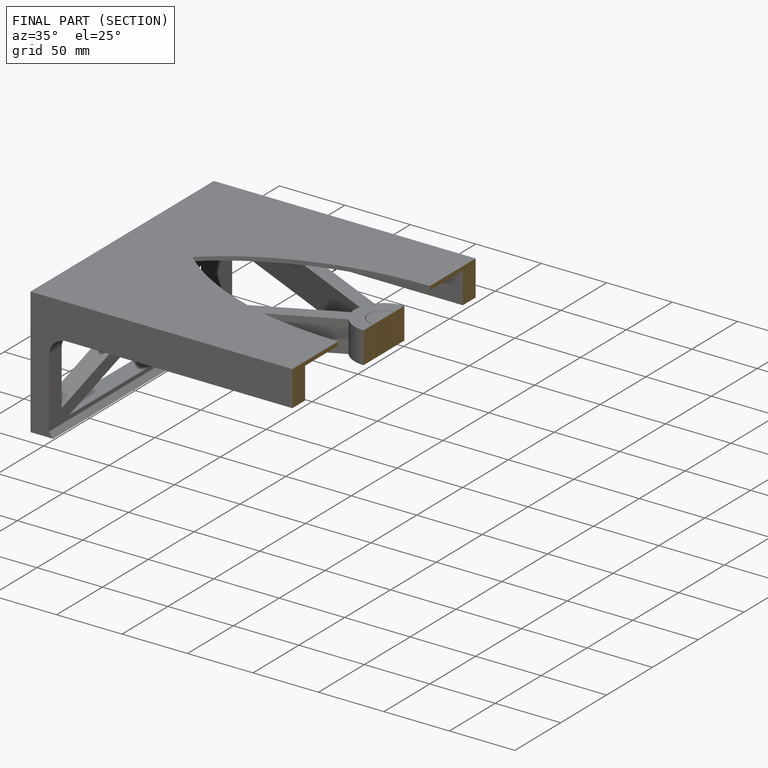
[diagram: finished part — half-section view (interior)]
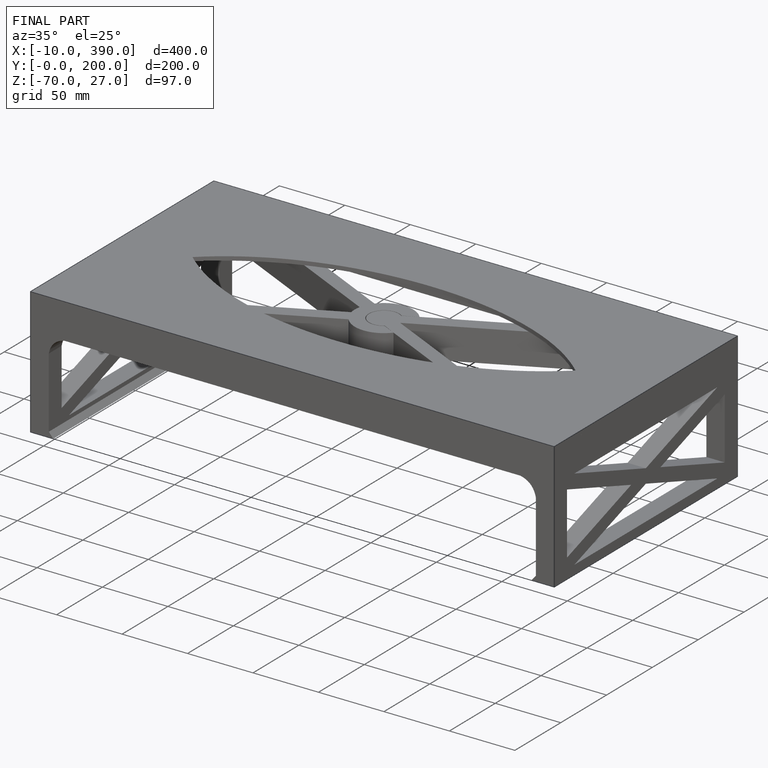
[diagram: finished part — iso view with bounding-box wireframe]
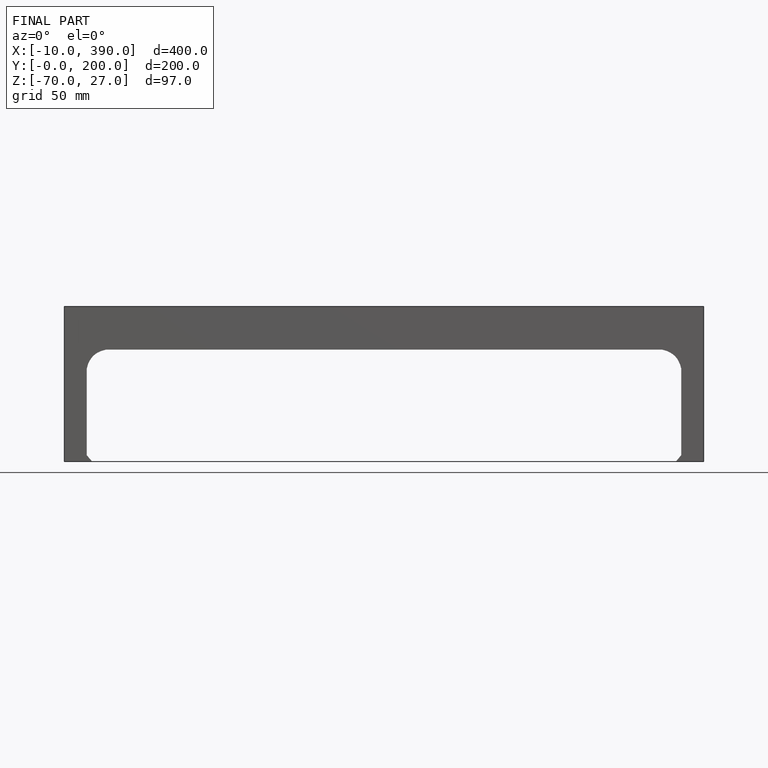
[diagram: finished part — front view with bounding-box wireframe]
